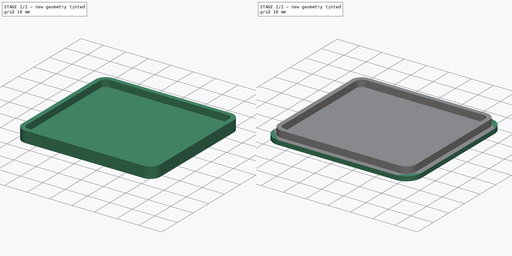
[diagram: build sequence overview — one tinted view per stage of 2, left to right]
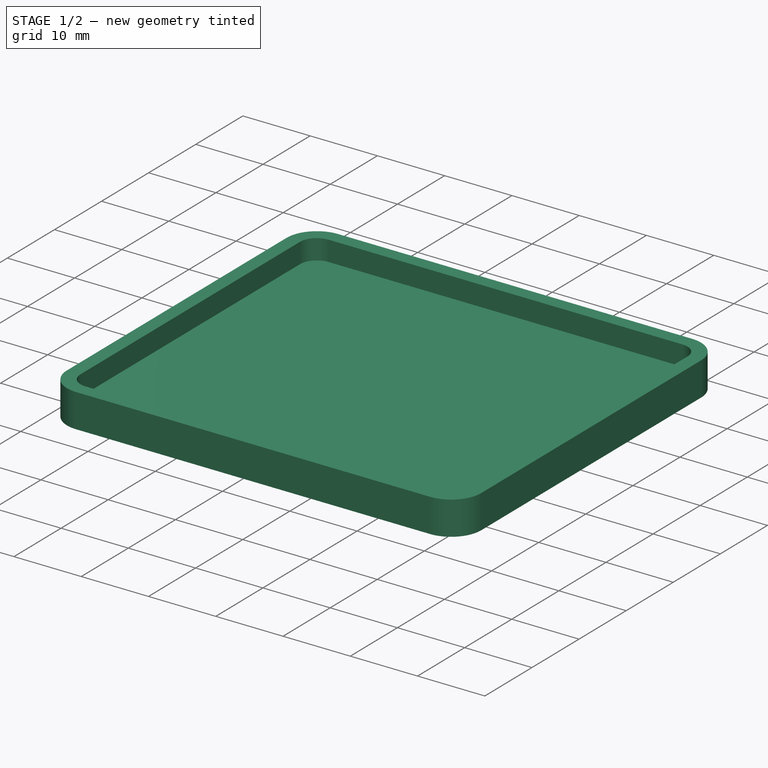
[diagram: stage 1 of 2 — iso view after this stage's code; geometry added in this stage tinted green]
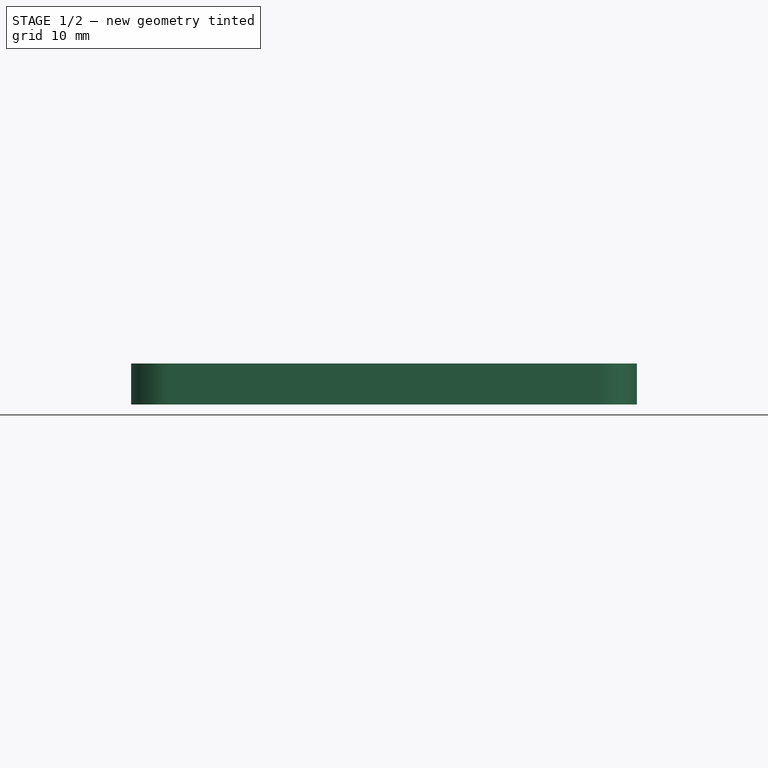
[diagram: stage 1 of 2 — front view after this stage's code; geometry added in this stage tinted green]
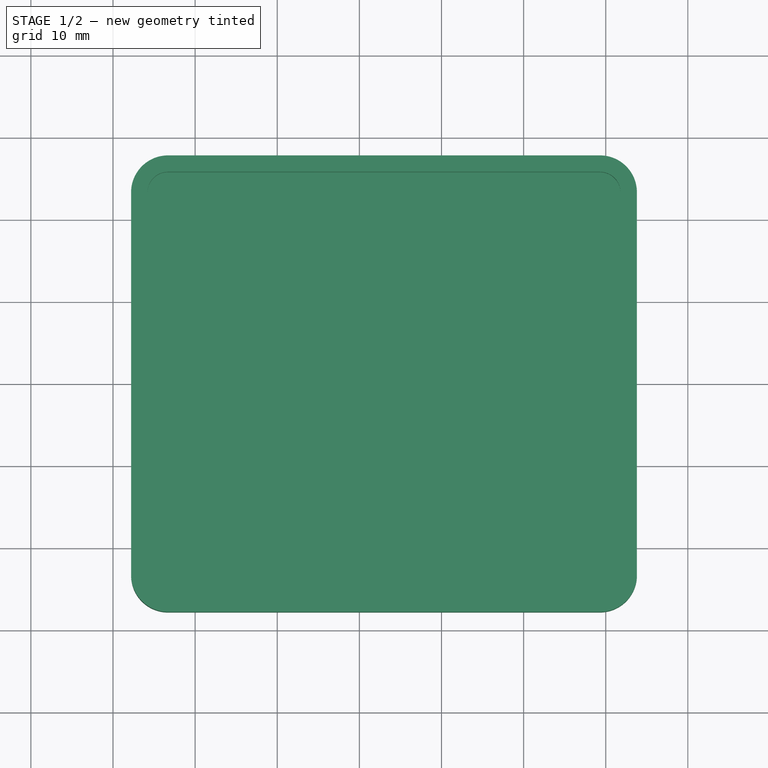
[diagram: stage 1 of 2 — top view after this stage's code; geometry added in this stage tinted green]
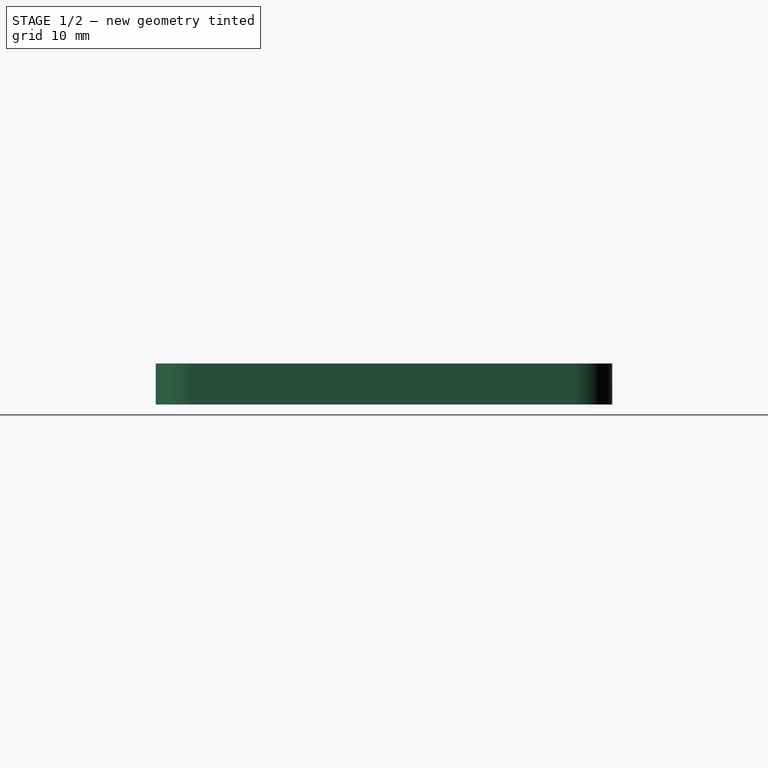
[diagram: stage 1 of 2 — right view after this stage's code; geometry added in this stage tinted green]
FCSTD DOCUMENT  (FreeCAD 0.21R33771 (Git))
Label: Base
License: All rights reserved
LicenseURL: https://en.wikipedia.org/wiki/All_rights_reserved
objects: Sketcher::SketchObject×2, Part::Extrusion×2, Part::Thickness×1
note: 5 computed .brp shape members not serialized (recipe doc carries the construction recipe); baked Part::Feature solids carry a one-line shape summary decoded from their .brp

FEATURE [Sketcher::SketchObject] Sketch001
  ExternalGeometry = -> [Sketch]
  FullyConstrained = true
  sketch-geometry (8):
    g0: LineSegment StartX=6.7 StartY=57.8 StartZ=0 EndX=59.3 EndY=57.8 EndZ=0
    g1: LineSegment StartX=63.8 StartY=53.3 StartZ=0 EndX=63.8 EndY=6.7 EndZ=0
    g2: LineSegment StartX=59.3 StartY=2.2 StartZ=0 EndX=6.7 EndY=2.2 EndZ=0
    g3: LineSegment StartX=2.2 StartY=6.7 StartZ=0 EndX=2.2 EndY=53.3 EndZ=0
    g4: ArcOfCircle CenterX=6.7 CenterY=53.3 CenterZ=0 NormalX=0 NormalY=0 NormalZ=1 AngleXU=0 Radius=4.5 StartAngle=1.5708 EndAngle=3.14159
    g5: ArcOfCircle CenterX=59.3 CenterY=53.3 CenterZ=0 NormalX=0 NormalY=0 NormalZ=1 AngleXU=0 Radius=4.5 StartAngle=0 EndAngle=1.5708
    g6: ArcOfCircle CenterX=59.3 CenterY=6.7 CenterZ=0 NormalX=0 NormalY=0 NormalZ=1 AngleXU=0 Radius=4.5 StartAngle=4.71239 EndAngle=6.28319
    g7: ArcOfCircle CenterX=6.7 CenterY=6.7 CenterZ=0 NormalX=0 NormalY=0 NormalZ=1 AngleXU=0 Radius=4.5 StartAngle=3.14159 EndAngle=4.71239
  constraints (18):
    c: Horizontal(g0)
    c: Horizontal(g2)
    c: Vertical(g1)
    c: Vertical(g3)
    c: Tangent(g0,g4) = 1.5708
    c: Tangent(g3,g4) = 1.5708
    c: Tangent(g0,g5) = 1.5708
    c: Tangent(g1,g5) = 1.5708
    c: Tangent(g1,g6) = 1.5708
    c: Tangent(g2,g6) = 1.5708
    c: Tangent(g2,g7) = 1.5708
    c: Tangent(g3,g7) = 1.5708
    c: Equal(g4,g5)
    c: Equal(g4,g6)
    c: Equal(g4,g7)
    c: Radius(g4) = 4.5
    c: Coincident(g5,g-3)
    c: Coincident(g-6,g7)
FEATURE [Part::Extrusion] Extrude001  label="burt"
  Base = -> Sketch001
  Dir = (0,0,1)
  DirMode = 2
  FaceMakerClass = Part::FaceMakerBullseye
  LengthFwd = 5
  LengthRev = 0
  Solid = true
  Symmetric = false
FEATURE [Part::Thickness] Thickness
  Faces = -> Extrude001 [Face10]
  Intersection = false
  Join = 0
  Mode = 0
  SelfIntersection = false
  Value = -2
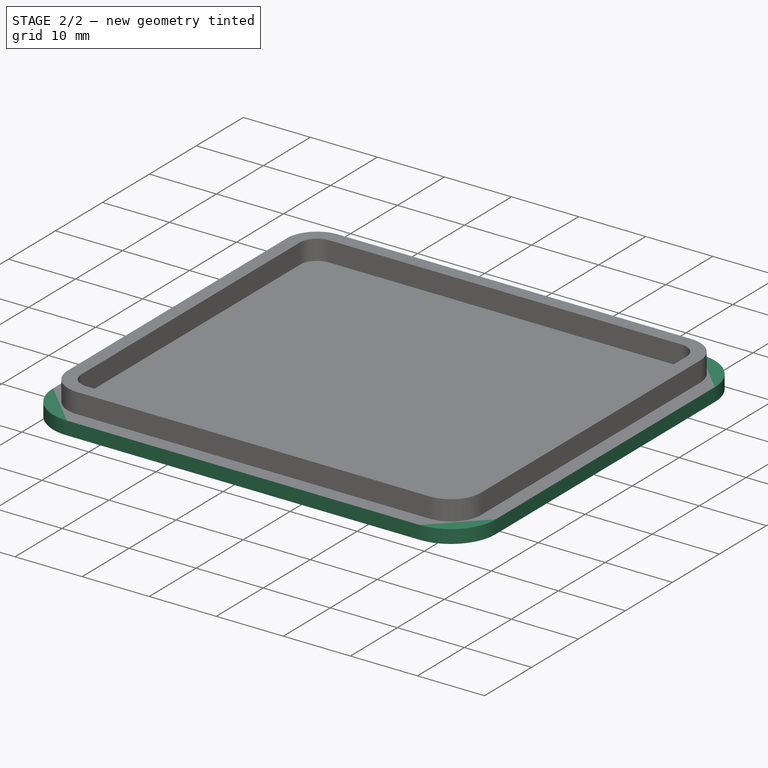
[diagram: stage 2 of 2 — iso view after this stage's code; geometry added in this stage tinted green]
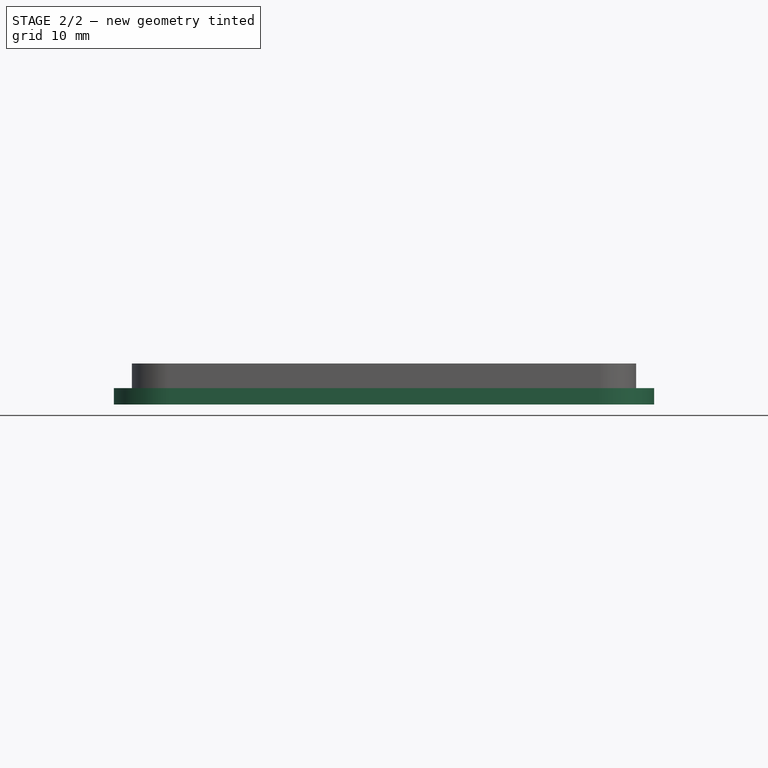
[diagram: stage 2 of 2 — front view after this stage's code; geometry added in this stage tinted green]
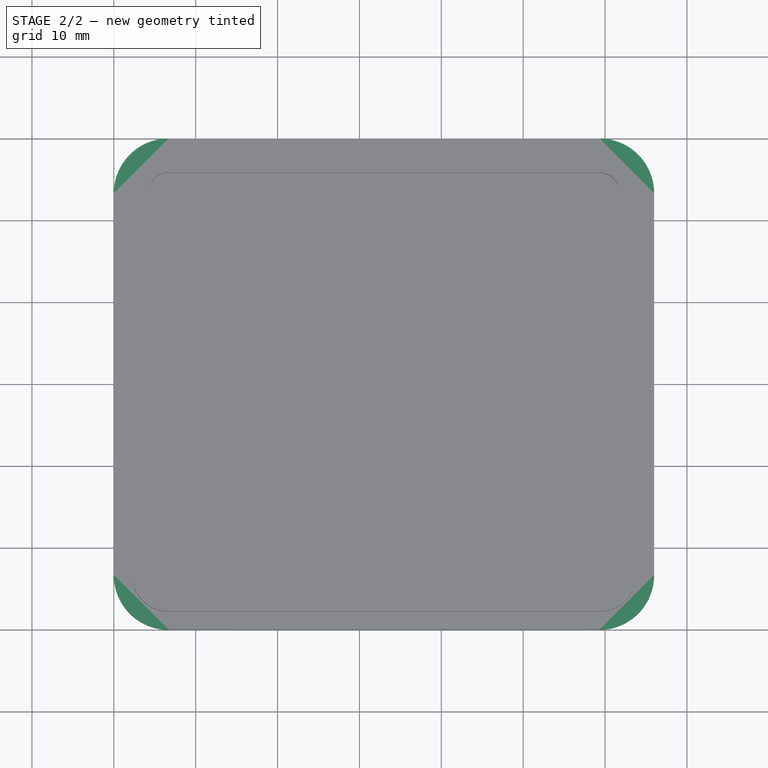
[diagram: stage 2 of 2 — top view after this stage's code; geometry added in this stage tinted green]
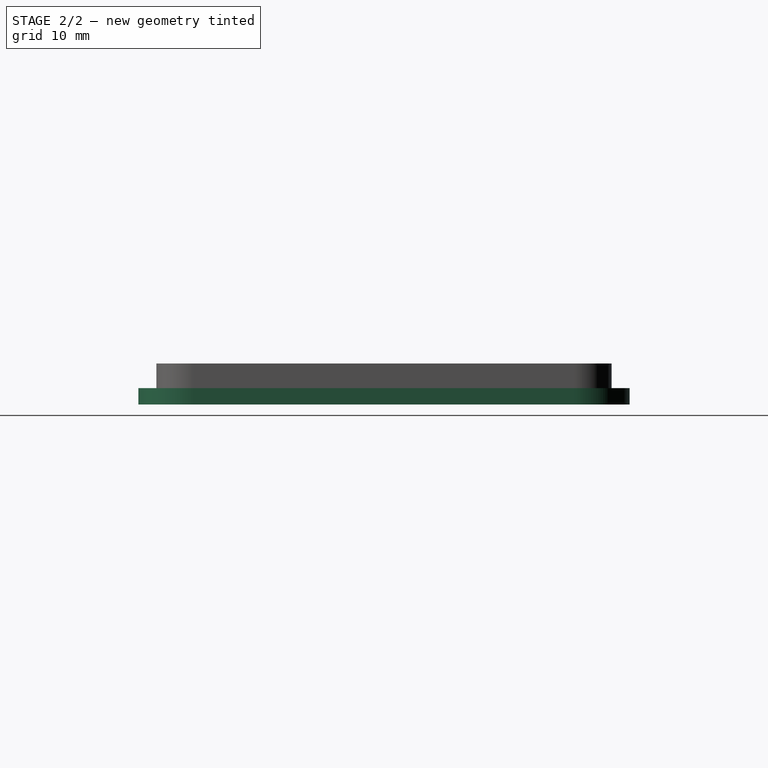
[diagram: stage 2 of 2 — right view after this stage's code; geometry added in this stage tinted green]
FEATURE [Sketcher::SketchObject] Sketch
  FullyConstrained = true
  sketch-geometry (8):
    g0: LineSegment StartX=6.7 StartY=0 StartZ=0 EndX=59.3 EndY=0 EndZ=0
    g1: LineSegment StartX=66 StartY=6.7 StartZ=0 EndX=66 EndY=53.3 EndZ=0
    g2: LineSegment StartX=59.3 StartY=60 StartZ=0 EndX=6.7 EndY=60 EndZ=0
    g3: LineSegment StartX=0 StartY=53.3 StartZ=0 EndX=0 EndY=6.7 EndZ=0
    g4: ArcOfCircle CenterX=6.7 CenterY=6.7 CenterZ=0 NormalX=0 NormalY=0 NormalZ=1 AngleXU=0 Radius=6.7 StartAngle=3.14159 EndAngle=4.71239
    g5: ArcOfCircle CenterX=6.7 CenterY=53.3 CenterZ=0 NormalX=0 NormalY=0 NormalZ=1 AngleXU=0 Radius=6.7 StartAngle=1.5708 EndAngle=3.14159
    g6: ArcOfCircle CenterX=59.3 CenterY=53.3 CenterZ=0 NormalX=0 NormalY=0 NormalZ=1 AngleXU=0 Radius=6.7 StartAngle=6.77e-14 EndAngle=1.5708
    g7: ArcOfCircle CenterX=59.3 CenterY=6.7 CenterZ=0 NormalX=0 NormalY=0 NormalZ=1 AngleXU=0 Radius=6.7 StartAngle=4.71239 EndAngle=6.28319
  constraints (20):
    c: Horizontal(g0)
    c: Horizontal(g2)
    c: Vertical(g1)
    c: Vertical(g3)
    c: Tangent(g0,g4) = -1.5708
    c: Tangent(g3,g4) = -1.5708
    c: Tangent(g2,g5) = -1.5708
    c: Tangent(g3,g5) = -1.5708
    c: Tangent(g1,g6) = -1.5708
    c: Tangent(g2,g6) = -1.5708
    c: Tangent(g0,g7) = -1.5708
    c: Tangent(g1,g7) = -1.5708
    c: Radius(g5) = 6.7
    c: PointOnObject(g3,g-2)
    c: PointOnObject(g0,g-1)
    c: Radius(g4) = 6.7
    c: DistanceX(g3,g1) = 66
    c: DistanceY(g0,g2) = 60
    c: Equal(g6,g7)
    c: Radius(g6) = 6.7
FEATURE [Part::Extrusion] Extrude  label="base"
  Base = -> Sketch
  Dir = (0,0,1)
  DirMode = 2
  FaceMakerClass = Part::FaceMakerBullseye
  LengthFwd = 2
  LengthRev = 0
  Solid = true
  Symmetric = false
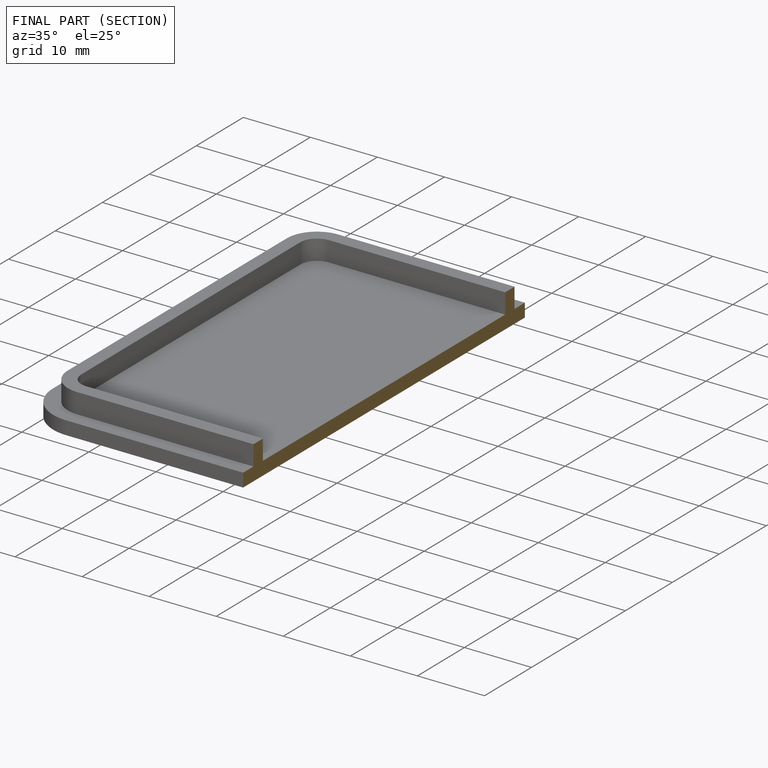
[diagram: finished part — half-section view (interior)]
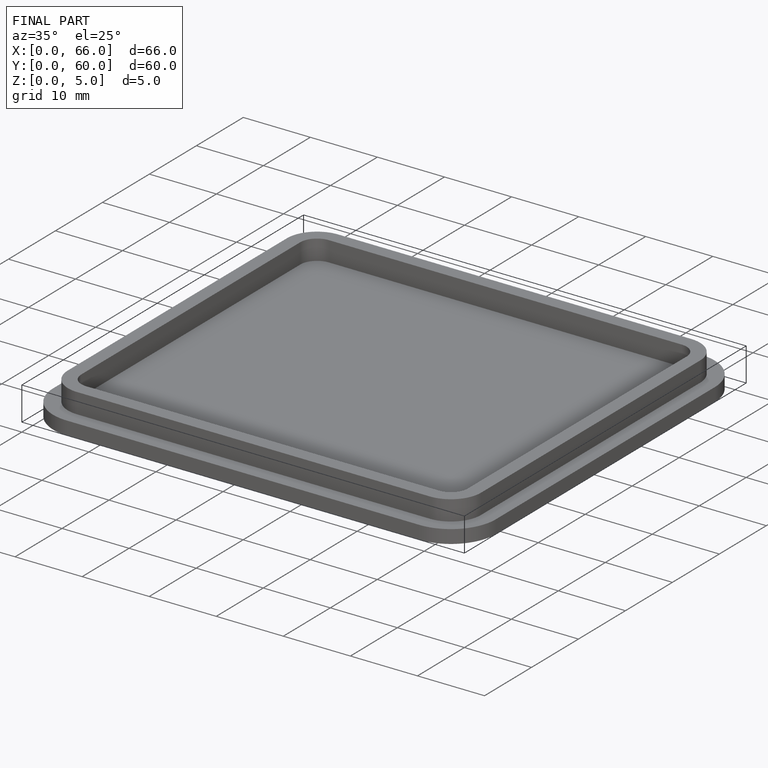
[diagram: finished part — iso view with bounding-box wireframe]
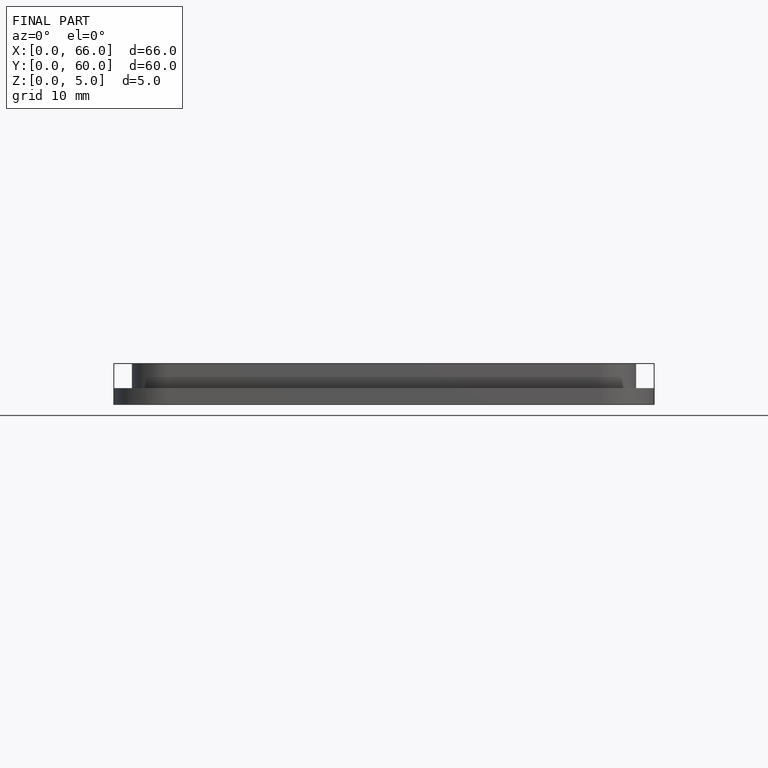
[diagram: finished part — front view with bounding-box wireframe]
